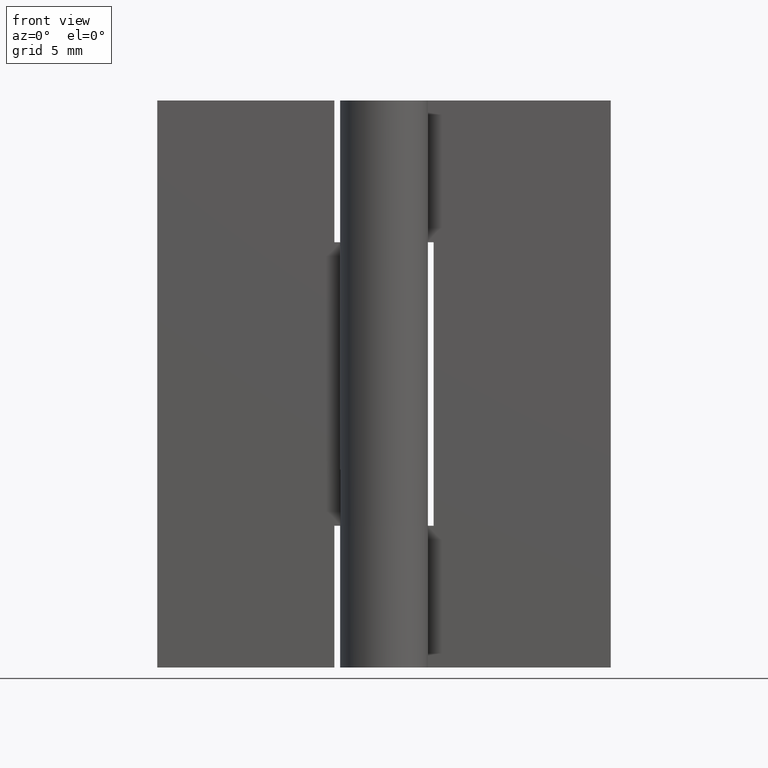
[diagram: clean part render]
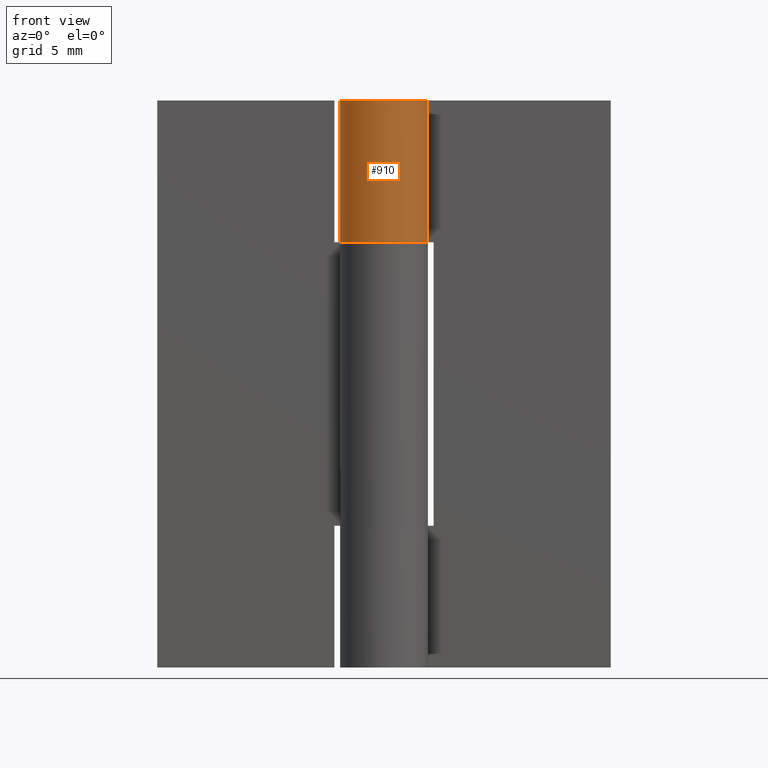
[diagram: same view with one face highlighted and labeled with its STEP entity id]
A machine part, front view. The second image highlights one B-rep face of the part: STEP entity #910.
In plain terms, the highlighted face is a freeform B-spline surface patch.
Its self-contained STEP definition (entity closure, byte-faithful):
#620=CARTESIAN_POINT('',(2.739981751764055,1.450000000000000,30.0));
#621=VERTEX_POINT('',#620);
#627=CARTESIAN_POINT('',(0.0,3.099998000000000,30.0));
#628=VERTEX_POINT('',#627);
#629=CARTESIAN_POINT('',(2.739981751764055,1.450000000000000,30.0));
#630=CARTESIAN_POINT('',(3.842027408336786,-0.632471143840416,30.000000000000004));
#631=CARTESIAN_POINT('',(2.130594885355316,-2.251790737784722,30.0));
#632=CARTESIAN_POINT('',(0.419162362373844,-3.871110331729029,30.000000000000004));
#633=CARTESIAN_POINT('',(-1.599218559171947,-2.655655344977899,30.0));
#634=CARTESIAN_POINT('',(-3.617599480717733,-1.440200358226773,30.000000000000004));
#635=CARTESIAN_POINT('',(-2.986848545660753,0.829898189834367,30.0));
#636=CARTESIAN_POINT('',(-2.356097610603771,3.099996737895512,30.000000000000004));
#637=CARTESIAN_POINT('',(0.0,3.099998000000000,30.0));
#645=(BOUNDED_CURVE()B_SPLINE_CURVE(2,(#629,#630,#631,#632,#633,#634,#635,#636,#637),.UNSPECIFIED.,.F.,.U.)B_SPLINE_CURVE_WITH_KNOTS((3,2,2,2,3),(0.0,0.250000000000000,0.500000000000000,0.750000000000000,1.0),.UNSPECIFIED.)CURVE()GEOMETRIC_REPRESENTATION_ITEM()RATIONAL_B_SPLINE_CURVE((1.0,0.796150117301085,1.0,0.796150117301085,1.0,0.796150117301085,1.0,0.796150117301085,1.0))REPRESENTATION_ITEM(''));
#646=EDGE_CURVE('',#621,#628,#645,.T.);
#648=CARTESIAN_POINT('',(0.003521362805220,3.099998000000000,30.0));
#649=VERTEX_POINT('',#648);
#650=CARTESIAN_POINT('',(0.0,3.099998000000000,30.0));
#651=CARTESIAN_POINT('',(0.003521362805220,3.099998000000000,30.0));
#652=QUASI_UNIFORM_CURVE('',1,(#650,#651),.UNSPECIFIED.,.F.,.U.);
#653=EDGE_CURVE('',#628,#649,#652,.T.);
#817=CARTESIAN_POINT('',(0.003521362805220,3.099998000000000,40.0));
#818=VERTEX_POINT('',#817);
#824=CARTESIAN_POINT('',(2.739981751764055,1.450000000000000,40.0));
#825=VERTEX_POINT('',#824);
#826=CARTESIAN_POINT('',(2.739981751764052,1.450000000000000,40.0));
#827=CARTESIAN_POINT('',(3.842352259281344,-0.633086258124317,40.0));
#828=CARTESIAN_POINT('',(2.129955333572984,-2.252396562993293,40.0));
#829=CARTESIAN_POINT('',(0.417558407864625,-3.871706867862267,40.0));
#830=CARTESIAN_POINT('',(-1.600726611546711,-2.654745621540072,40.0));
#831=CARTESIAN_POINT('',(-3.619011630958046,-1.437784375217877,40.0));
#832=CARTESIAN_POINT('',(-2.986140433580759,0.832445380150624,40.0));
#833=CARTESIAN_POINT('',(-2.353269236203469,3.102675135519129,40.0));
#834=CARTESIAN_POINT('',(0.003521362805217,3.099997999999999,40.0));
#842=(BOUNDED_CURVE()B_SPLINE_CURVE(2,(#826,#827,#828,#829,#830,#831,#832,#833,#834),.UNSPECIFIED.,.F.,.U.)B_SPLINE_CURVE_WITH_KNOTS((3,2,2,2,3),(0.0,0.250000000000000,0.500000000000000,0.750000000000000,1.0),.UNSPECIFIED.)CURVE()GEOMETRIC_REPRESENTATION_ITEM()RATIONAL_B_SPLINE_CURVE((1.0,0.796064190964140,1.0,0.796064190964140,1.0,0.796064190964140,1.0,0.796064190964140,1.0))REPRESENTATION_ITEM(''));
#843=EDGE_CURVE('',#825,#818,#842,.T.);
#873=CARTESIAN_POINT('',(0.087215809709336,3.098772886569253,40.250000000000007));
#874=CARTESIAN_POINT('',(0.087215809709336,3.098772886569253,29.743749999999999));
#875=CARTESIAN_POINT('',(-3.694254208917621,3.205203393624343,40.250000000000000));
#876=CARTESIAN_POINT('',(-3.694254208917621,3.205203393624343,29.743750000000002));
#877=CARTESIAN_POINT('',(-3.055487706738079,-0.523445196723088,40.250000000000007));
#878=CARTESIAN_POINT('',(-3.055487706738079,-0.523445196723088,29.743749999999999));
#879=CARTESIAN_POINT('',(-2.416721204558536,-4.252093787070518,40.250000000000000));
#880=CARTESIAN_POINT('',(-2.416721204558536,-4.252093787070518,29.743750000000002));
#881=CARTESIAN_POINT('',(1.113692359485484,-2.893041535896720,40.250000000000007));
#882=CARTESIAN_POINT('',(1.113692359485484,-2.893041535896720,29.743749999999999));
#883=CARTESIAN_POINT('',(4.644105923529503,-1.533989284722922,40.250000000000000));
#884=CARTESIAN_POINT('',(4.644105923529503,-1.533989284722922,29.743750000000002));
#885=CARTESIAN_POINT('',(2.617769613640669,1.660506624467238,40.250000000000007));
#886=CARTESIAN_POINT('',(2.617769613640669,1.660506624467238,29.743749999999999));
#894=(BOUNDED_SURFACE()B_SPLINE_SURFACE(1,2,((#873,#875,#877,#879,#881,#883,#885),(#874,#876,#878,#880,#882,#884,#886)),.UNSPECIFIED.,.F.,.F.,.U.)B_SPLINE_SURFACE_WITH_KNOTS((2,2),(3,2,2,3),(0.0,10.506250000000010),(0.0,5.870281529289078,11.740563058578161,17.610844587867231),.UNSPECIFIED.)GEOMETRIC_REPRESENTATION_ITEM()RATIONAL_B_SPLINE_SURFACE(((1.0,0.633830967398710,1.0,0.633830967398710,1.0,0.633830967398710,1.0),(1.0,0.633830967398710,1.0,0.633830967398710,1.0,0.633830967398710,1.0)))REPRESENTATION_ITEM('')SURFACE());
#895=ORIENTED_EDGE('',*,*,#646,.F.);
#896=CARTESIAN_POINT('',(2.739981751764055,1.450000000000000,40.0));
#897=CARTESIAN_POINT('',(2.739981751764055,1.450000000000000,30.0));
#898=QUASI_UNIFORM_CURVE('',1,(#896,#897),.UNSPECIFIED.,.F.,.U.);
#899=EDGE_CURVE('',#825,#621,#898,.T.);
#900=ORIENTED_EDGE('',*,*,#899,.F.);
#901=ORIENTED_EDGE('',*,*,#843,.T.);
#902=CARTESIAN_POINT('',(0.003521362805220,3.099998000000000,40.0));
#903=CARTESIAN_POINT('',(0.003521362805220,3.099998000000000,30.0));
#904=QUASI_UNIFORM_CURVE('',1,(#902,#903),.UNSPECIFIED.,.F.,.U.);
#905=EDGE_CURVE('',#818,#649,#904,.T.);
#906=ORIENTED_EDGE('',*,*,#905,.T.);
#907=ORIENTED_EDGE('',*,*,#653,.F.);
#908=EDGE_LOOP('',(#895,#900,#901,#906,#907));
#909=FACE_OUTER_BOUND('',#908,.T.);
#910=ADVANCED_FACE('',(#909),#894,.T.);